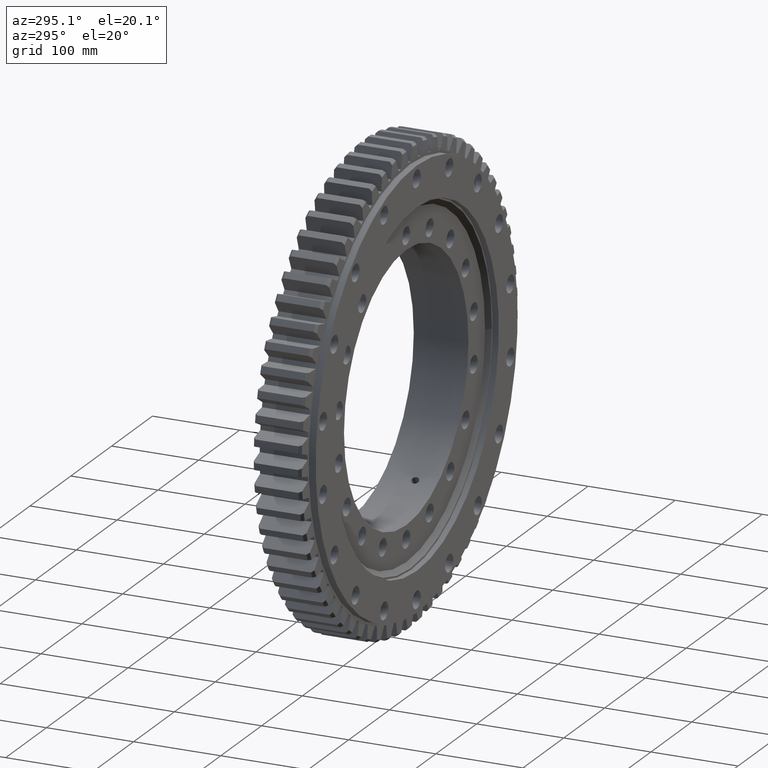
[diagram: clean part render]
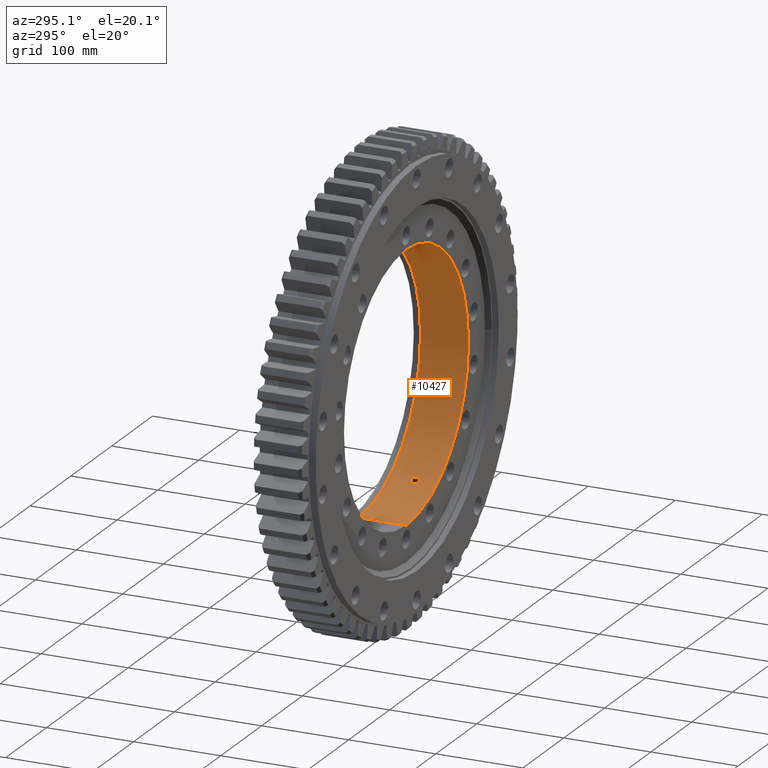
[diagram: same view with one face highlighted and labeled with its STEP entity id]
A machine part, auxiliary view. The second image highlights one B-rep face of the part: STEP entity #10427.
In plain terms, the highlighted cylindrical surface (partial cylindrical patch) has radius 152.5 mm, axis along (-0, 1, -0).
Its self-contained STEP definition (entity closure, byte-faithful):
#267 = CARTESIAN_POINT ( 'NONE',  ( 74.29225030176593200, -3.907519152013132900, 133.1802212328974800 ) ) ;
#273 = CARTESIAN_POINT ( 'NONE',  ( 78.81364263191640900, -3.387316266409083900, 130.5553626666418300 ) ) ;
#314 = CARTESIAN_POINT ( 'NONE',  ( 72.71927240665671400, -1.991495228336234400, -134.0454027066227200 ) ) ;
#336 = CARTESIAN_POINT ( 'NONE',  ( 74.28767655953751600, -3.904536432834662100, -133.1827728660287800 ) ) ;
#358 = CARTESIAN_POINT ( 'NONE',  ( 72.31968173213429900, 2.328878195137326700E-009, -134.2613631472688400 ) ) ;
#387 = CARTESIAN_POINT ( 'NONE',  ( 73.13064253305240900, -2.745461392647999200, -133.8214714272018900 ) ) ;
#462 = B_SPLINE_CURVE_WITH_KNOTS ( 'NONE', 3,
 ( #6783, #6827, #5175, #15782, #7324, #7530, #16392, #1565, #3074, #273, #4847, #7984, #477, #11940, #13487, #13481, #14921, #4697, #1745, #3208, #11996, #10524, #267, #6163, #9163, #17908, #7685, #16441, #6236, #14981, #4754, #13541, #3280, #12050 ),
 .UNSPECIFIED., .F., .F.,
 ( 4, 2, 2, 2, 2, 2, 2, 2, 2, 2, 2, 2, 2, 2, 2, 2, 4 ),
 ( 0.01406981979965470600, 0.01494898441356951600, 0.01582814902748432700, 0.01670731364139913700, 0.01758647825531395000, 0.01846564286922875900, 0.01934480748314357200, 0.02022397209705838200, 0.02110313671097319200, 0.02198230132488800100, 0.02286146593880281100, 0.02374063055271762000, 0.02461979516663243300, 0.02549895978054724300, 0.02637812439446205300, 0.02725728900837686600, 0.02813645362229167500 ),
 .UNSPECIFIED. ) ;
#477 = CARTESIAN_POINT ( 'NONE',  ( 77.97392509725818900, -4.042849930973918800, 131.0587312061424000 ) ) ;
#641 = EDGE_CURVE ( 'NONE', #1531, #15459, #17155, .T. ) ;
#690 = CARTESIAN_POINT ( 'NONE',  ( 79.91641606487417000, -1.455813674671013100, -129.8831362975141100 ) ) ;
#701 = ORIENTED_EDGE ( 'NONE', *, *, #1213, .F. ) ;
#722 = B_SPLINE_CURVE_WITH_KNOTS ( 'NONE', 3,
 ( #11379, #8417, #6978, #15707, #5505, #14264, #4018, #12789, #2546, #11322, #1076, #9829, #18575, #8363, #17125, #6914, #15647, #5436, #14196, #3951, #12731, #2472, #11258, #1016, #9755, #18513, #8299, #17061, #6835, #15586, #5377, #14132, #3888, #12671 ),
 .UNSPECIFIED., .F., .F.,
 ( 4, 2, 2, 2, 2, 2, 2, 2, 2, 2, 2, 2, 2, 2, 2, 2, 4 ),
 ( 6.897535353108955800E-018, 0.0008793637374784256300, 0.001758727474956844300, 0.002638091212435262900, 0.003517454949913681700, 0.004396818687392100100, 0.005276182424870518900, 0.006155546162348937700, 0.007034909899827356500, 0.007914273637305775300, 0.008793637374784193200, 0.009673001112262612900, 0.01055236484974103100, 0.01143172858721945100, 0.01231109232469786800, 0.01319045606217628800, 0.01406981979965470600 ),
 .UNSPECIFIED. ) ;
#790 = CARTESIAN_POINT ( 'NONE',  ( 72.44688673398560800, 1.168614980020480400, -134.1927789151945700 ) ) ;
#1016 = CARTESIAN_POINT ( 'NONE',  ( 78.61398750475098000, 3.578736215521895600, 130.6757454141555600 ) ) ;
#1030 = CARTESIAN_POINT ( 'NONE',  ( 72.31968173213498100, 2.328872791802056300E-009, 134.2613631472684700 ) ) ;
#1055 = CARTESIAN_POINT ( 'NONE',  ( 74.99287484536390000, 4.270932440512649600, -132.7870210118497900 ) ) ;
#1076 = CARTESIAN_POINT ( 'NONE',  ( 73.85858165070760600, 3.576375774547100800, 133.4212143814229400 ) ) ;
#1213 = EDGE_CURVE ( 'NONE', #15459, #10234, #10272, .T. ) ;
#1272 = CARTESIAN_POINT ( 'NONE',  ( 80.11391036619490100, 2.328878195137327100E-009, 129.7613631472685000 ) ) ;
#1360 = ORIENTED_EDGE ( 'NONE', *, *, #8076, .F. ) ;
#1531 = VERTEX_POINT ( 'NONE', #6613 ) ;
#1565 = CARTESIAN_POINT ( 'NONE',  ( 79.32747256124343900, -2.745461392648000900, 130.2437299423034500 ) ) ;
#1717 = CYLINDRICAL_SURFACE ( 'NONE', #10971, 152.5000000000000000 ) ;
#1745 = CARTESIAN_POINT ( 'NONE',  ( 75.74160563177447600, -4.471226233845781600, 132.3614061624894300 ) ) ;
#1768 = CARTESIAN_POINT ( 'NONE',  ( 73.86152143475047200, 3.578736215521888900, -133.4195829789848600 ) ) ;
#1778 = CARTESIAN_POINT ( 'NONE',  ( 0.0000000000000000000, 31.02910628019324300, -1.692367527159823000E-015 ) ) ;
#1799 = CARTESIAN_POINT ( 'NONE',  ( 72.52212737383339900, -1.449934536375629500, -134.1521658688657800 ) ) ;
#1840 = CARTESIAN_POINT ( 'NONE',  ( 72.84159852154947100, -2.252647105919811700, -133.9790230486246700 ) ) ;
#1866 = DIRECTION ( 'NONE',  ( -0.0000000000000000000, 1.000000000000000000, -2.727064569436389400E-017 ) ) ;
#1946 = CARTESIAN_POINT ( 'NONE',  ( 80.11391036619423300, -0.2972754966287049500, -129.7613631472689000 ) ) ;
#2104 = EDGE_CURVE ( 'NONE', #14253, #4080, #462, .T. ) ;
#2128 = CARTESIAN_POINT ( 'NONE',  ( 77.49964222072449600, -4.271301954763126600, -131.3397500155348300 ) ) ;
#2192 = CARTESIAN_POINT ( 'NONE',  ( 76.50558152251309700, 4.499895492040503900, -131.9213104553115300 ) ) ;
#2472 = CARTESIAN_POINT ( 'NONE',  ( 77.96928300471272200, 4.045532425552234000, 131.0614937138474300 ) ) ;
#2485 = VECTOR ( 'NONE', #4945, 1000.000000000000000 ) ;
#2520 = CARTESIAN_POINT ( 'NONE',  ( 75.99718609909891100, 4.500103945228436200, -132.2148397925267600 ) ) ;
#2546 = CARTESIAN_POINT ( 'NONE',  ( 73.29624694366701500, 2.974997841187750200, 133.7308988683331000 ) ) ;
#2585 = EDGE_LOOP ( 'NONE', ( #16240, #10200 ) ) ;
#2718 = CARTESIAN_POINT ( 'NONE',  ( 74.98751093382010400, -4.268822917716241800, -132.7900494178193800 ) ) ;
#2780 = CARTESIAN_POINT ( 'NONE',  ( 76.50372942308531800, -4.500246579133800200, -131.9223917282067500 ) ) ;
#2938 = CARTESIAN_POINT ( 'NONE',  ( 79.60497320494060600, -2.259560185670749000, -130.0743068393758200 ) ) ;
#3069 = CARTESIAN_POINT ( 'NONE',  ( 79.16496670802573000, -2.976696863406552000, -130.3426302476272300 ) ) ;
#3074 = CARTESIAN_POINT ( 'NONE',  ( 79.16834218617384500, -2.972161365393612500, 130.3405791817064300 ) ) ;
#3108 = EDGE_CURVE ( 'NONE', #10234, #17245, #14020, .T. ) ;
#3143 = CARTESIAN_POINT ( 'NONE',  ( 78.61076632590571500, -3.581659222133238600, -130.6776844001974200 ) ) ;
#3208 = CARTESIAN_POINT ( 'NONE',  ( 75.24197497236255600, -4.357368425672514300, 132.6460623887837500 ) ) ;
#3280 = CARTESIAN_POINT ( 'NONE',  ( 72.31968173213499500, -0.2972754966287051700, 134.2613631472685000 ) ) ;
#3301 = CARTESIAN_POINT ( 'NONE',  ( 72.31968173213429900, 2.328878195137326700E-009, -134.2613631472688400 ) ) ;
#3597 = CARTESIAN_POINT ( 'NONE',  ( 80.11391036619424700, 2.328876140039725400E-009, -129.7613631472689000 ) ) ;
#3608 = EDGE_CURVE ( 'NONE', #4080, #14253, #722, .T. ) ;
#3660 = AXIS2_PLACEMENT_3D ( 'NONE', #12781, #8223, #16934 ) ;
#3741 = CARTESIAN_POINT ( 'NONE',  ( 1.867586368699713500E-014, 29.49999999999997200, -152.5000000000000000 ) ) ;
#3888 = CARTESIAN_POINT ( 'NONE',  ( 80.11391036619490100, 0.2937030538668941600, 129.7613631472685300 ) ) ;
#3929 = CARTESIAN_POINT ( 'NONE',  ( 77.50387137879003800, 4.269483257978977900, -131.3372500605864300 ) ) ;
#3951 = CARTESIAN_POINT ( 'NONE',  ( 77.25876475317262800, 4.355930588581140100, 131.4816206058207800 ) ) ;
#4018 = CARTESIAN_POINT ( 'NONE',  ( 72.84253837888411500, 2.254214887922843000, 133.9785105523147000 ) ) ;
#4080 = VERTEX_POINT ( 'NONE', #1030 ) ;
#4542 = EDGE_LOOP ( 'NONE', ( #1360, #8602 ) ) ;
#4634 = CARTESIAN_POINT ( 'NONE',  ( 0.0000000000000000000, 29.49999999999997200, -1.650667811563645600E-015 ) ) ;
#4639 = CARTESIAN_POINT ( 'NONE',  ( 75.98975245830382600, -4.499750269149171100, -132.2191195563515900 ) ) ;
#4657 = CARTESIAN_POINT ( 'NONE',  ( 72.84429951899075200, 2.257562028219687500, -133.9775525877408900 ) ) ;
#4697 = CARTESIAN_POINT ( 'NONE',  ( 75.99627785308588600, -4.500246579133800200, 132.2153690287466100 ) ) ;
#4754 = CARTESIAN_POINT ( 'NONE',  ( 72.44790429841467000, -1.173634041076794900, 134.1922298612379900 ) ) ;
#4778 = CARTESIAN_POINT ( 'NONE',  ( 80.08907344847943900, 0.5897130801298984300, -129.7767066349589400 ) ) ;
#4801 = CARTESIAN_POINT ( 'NONE',  ( 79.72473710999338400, -1.997087964910180300, -130.0008805503838400 ) ) ;
#4847 = CARTESIAN_POINT ( 'NONE',  ( 78.61558488518825500, -3.577393507886714300, 130.6747859767079700 ) ) ;
#4849 = DIRECTION ( 'NONE',  ( -0.0000000000000000000, 1.000000000000000000, -2.727064569436389400E-017 ) ) ;
#4876 = B_SPLINE_CURVE_WITH_KNOTS ( 'NONE', 3,
 ( #15130, #17039, #4778, #13987, #12443, #9112, #10791, #17099, #8341, #11233, #14177, #18557, #10662, #3929, #12709, #9734, #2192, #2520, #12768, #9803, #1055, #8211, #10548, #1768, #11301, #12075, #13436, #4657, #18294, #8087, #790, #9555, #11032, #3301 ),
 .UNSPECIFIED., .F., .F.,
 ( 4, 2, 2, 2, 2, 2, 2, 2, 2, 2, 2, 2, 2, 2, 2, 2, 4 ),
 ( 3.417226916694622600E-018, 0.0008793637374784213000, 0.001758727474956839600, 0.002638091212435258600, 0.003517454949913677400, 0.004396818687392095800, 0.005276182424870514600, 0.006155546162348932500, 0.007034909899827352200, 0.007914273637305771800, 0.008793637374784189800, 0.009673001112262611200, 0.01055236484974103100, 0.01143172858721944900, 0.01231109232469786800, 0.01319045606217628800, 0.01406981979965470800 ),
 .UNSPECIFIED. ) ;
#4945 = DIRECTION ( 'NONE',  ( -0.0000000000000000000, 1.000000000000000000, -2.727064569436389400E-017 ) ) ;
#5064 = ORIENTED_EDGE ( 'NONE', *, *, #3108, .F. ) ;
#5175 = CARTESIAN_POINT ( 'NONE',  ( 80.08968361175948300, -0.5854773802903793200, 129.7763302393175600 ) ) ;
#5377 = CARTESIAN_POINT ( 'NONE',  ( 79.99091217799390600, 1.168614980020484100, 129.8372337943230500 ) ) ;
#5436 = CARTESIAN_POINT ( 'NONE',  ( 76.50281696806774800, 4.500103945228435300, 131.9229136742169700 ) ) ;
#5505 = CARTESIAN_POINT ( 'NONE',  ( 72.52224790989745900, 1.450729198927594300, 134.1521014672491100 ) ) ;
#6071 = FACE_BOUND ( 'NONE', #4542, .T. ) ;
#6163 = CARTESIAN_POINT ( 'NONE',  ( 73.86481123534292700, -3.581659222133224400, 133.4177628492957100 ) ) ;
#6236 = CARTESIAN_POINT ( 'NONE',  ( 72.72169651598136400, -1.997087964910176700, 134.0440879224824200 ) ) ;
#6416 = AXIS2_PLACEMENT_3D ( 'NONE', #4634, #13411, #17718 ) ;
#6598 = ORIENTED_EDGE ( 'NONE', *, *, #13990, .T. ) ;
#6613 = CARTESIAN_POINT ( 'NONE',  ( 0.0000000000000000000, -25.50000000000001100, 152.5000000000000000 ) ) ;
#6783 = CARTESIAN_POINT ( 'NONE',  ( 80.11391036619490100, 2.328878195137327100E-009, 129.7613631472685000 ) ) ;
#6797 = CARTESIAN_POINT ( 'NONE',  ( 80.11391036619424700, 2.328876140039725400E-009, -129.7613631472689000 ) ) ;
#6827 = CARTESIAN_POINT ( 'NONE',  ( 80.11391036619491500, -0.2936365429435590600, 129.7613631472685000 ) ) ;
#6835 = CARTESIAN_POINT ( 'NONE',  ( 79.72592516896268900, 1.994575252088861300, 130.0001523891896200 ) ) ;
#6914 = CARTESIAN_POINT ( 'NONE',  ( 75.74109442347436500, 4.471350611373477300, 132.3617051595541300 ) ) ;
#6978 = CARTESIAN_POINT ( 'NONE',  ( 72.34538804111461700, 0.5897130801299025300, 134.2475254894207800 ) ) ;
#7324 = CARTESIAN_POINT ( 'NONE',  ( 79.91811992822418600, -1.449934536375630900, 129.8820875766638500 ) ) ;
#7530 = CARTESIAN_POINT ( 'NONE',  ( 79.72708780112174100, -1.991495228336235900, 129.9994386021972200 ) ) ;
#7609 = EDGE_CURVE ( 'NONE', #12638, #15047, #13598, .T. ) ;
#7685 = CARTESIAN_POINT ( 'NONE',  ( 73.13402847583850500, -2.750386111445692900, 133.8196208991740000 ) ) ;
#7755 = CARTESIAN_POINT ( 'NONE',  ( 80.08908193046725900, -0.5914518736460990800, -129.7767018686269300 ) ) ;
#7984 = CARTESIAN_POINT ( 'NONE',  ( 78.19582636866437000, -3.904536432834660300, 130.9264015216959400 ) ) ;
#8076 = EDGE_CURVE ( 'NONE', #15047, #12638, #4876, .T. ) ;
#8087 = CARTESIAN_POINT ( 'NONE',  ( 72.52177132638914300, 1.449170517260515400, -134.1523590882490000 ) ) ;
#8211 = CARTESIAN_POINT ( 'NONE',  ( 74.51794151176935100, 4.045532425552234900, -133.0541266538635600 ) ) ;
#8223 = DIRECTION ( 'NONE',  ( -0.0000000000000000000, 1.000000000000000000, -2.727064569436389400E-017 ) ) ;
#8299 = CARTESIAN_POINT ( 'NONE',  ( 79.32756910315878000, 2.744976713661271300, 130.2436691359579300 ) ) ;
#8341 = CARTESIAN_POINT ( 'NONE',  ( 79.16623221906996800, 2.974997841187751100, -130.3418612894400000 ) ) ;
#8363 = CARTESIAN_POINT ( 'NONE',  ( 74.98945932626156700, 4.269483257978976100, 132.7889465359673700 ) ) ;
#8417 = CARTESIAN_POINT ( 'NONE',  ( 72.31968173213499500, 0.2973428317451576300, 134.2613631472684400 ) ) ;
#8602 = ORIENTED_EDGE ( 'NONE', *, *, #7609, .F. ) ;
#8727 = LINE ( 'NONE', #13587, #12187 ) ;
#9026 = ORIENTED_EDGE ( 'NONE', *, *, #641, .F. ) ;
#9073 = CARTESIAN_POINT ( 'NONE',  ( 73.65743935364349700, -3.387316266409080300, -133.5322980173491200 ) ) ;
#9112 = CARTESIAN_POINT ( 'NONE',  ( 79.72542771014292400, 1.995731449381475300, -130.0004574854199600 ) ) ;
#9139 = CARTESIAN_POINT ( 'NONE',  ( 78.80932210103111400, -3.391775692635564000, -130.5579716590619100 ) ) ;
#9163 = CARTESIAN_POINT ( 'NONE',  ( 73.66185907280024000, -3.391775692635555100, 133.5298608240546500 ) ) ;
#9256 = DIRECTION ( 'NONE',  ( 0.0000000000000000000, 2.275047181608927400E-017, 1.000000000000000000 ) ) ;
#9555 = CARTESIAN_POINT ( 'NONE',  ( 72.34560763203289500, 0.5919812696142539000, -134.2474073000338100 ) ) ;
#9734 = CARTESIAN_POINT ( 'NONE',  ( 76.75805194466187200, 4.471350611373476400, -131.7745644609420000 ) ) ;
#9755 = CARTESIAN_POINT ( 'NONE',  ( 78.80867149695785700, 3.392733562319130600, 130.5583680084018600 ) ) ;
#9803 = CARTESIAN_POINT ( 'NONE',  ( 75.23704119880132200, 4.355930588581141900, -132.6488632441640000 ) ) ;
#9829 = CARTESIAN_POINT ( 'NONE',  ( 74.28869496909098300, 3.905331024335234600, 133.1822072585419200 ) ) ;
#9951 = FACE_OUTER_BOUND ( 'NONE', #13226, .T. ) ;
#10200 = ORIENTED_EDGE ( 'NONE', *, *, #2104, .F. ) ;
#10234 = VERTEX_POINT ( 'NONE', #3741 ) ;
#10272 = LINE ( 'NONE', #15171, #2485 ) ;
#10427 = ADVANCED_FACE ( 'NONE', ( #9951, #17724, #6071 ), #1717, .F. ) ;
#10524 = CARTESIAN_POINT ( 'NONE',  ( 74.51800193744952600, -4.045601589200850300, 133.0540937578913700 ) ) ;
#10548 = CARTESIAN_POINT ( 'NONE',  ( 74.28785191883943600, 3.904573635158177200, -133.1826735286047900 ) ) ;
#10571 = CARTESIAN_POINT ( 'NONE',  ( 73.85989184732883900, -3.577393507886715200, -133.4204866322992900 ) ) ;
#10645 = CARTESIAN_POINT ( 'NONE',  ( 72.34475699128729800, -0.5854773802903771000, -134.2478657085010800 ) ) ;
#10662 = CARTESIAN_POINT ( 'NONE',  ( 77.96982067698344600, 4.045098719662561800, -131.0611704349388400 ) ) ;
#10791 = CARTESIAN_POINT ( 'NONE',  ( 79.60752451006334200, 2.254214887922844700, -130.0727439884142600 ) ) ;
#10890 = CARTESIAN_POINT ( 'NONE',  ( 77.25387225448034200, -4.357368425672524900, -131.4844929513712100 ) ) ;
#10971 = AXIS2_PLACEMENT_3D ( 'NONE', #1778, #4849, #9256 ) ;
#11032 = CARTESIAN_POINT ( 'NONE',  ( 72.31968173213429900, 0.2937030538668941600, -134.2613631472688700 ) ) ;
#11233 = CARTESIAN_POINT ( 'NONE',  ( 78.81094237744208900, 3.390104877264850500, -130.5569932624785000 ) ) ;
#11258 = CARTESIAN_POINT ( 'NONE',  ( 78.19565266028070000, 3.904573635158181700, 130.9265037185942300 ) ) ;
#11301 = CARTESIAN_POINT ( 'NONE',  ( 73.66252762343401600, 3.392733562319136800, -133.5294955590694000 ) ) ;
#11322 = CARTESIAN_POINT ( 'NONE',  ( 73.66020161829848700, 3.390104877264850100, 133.5307748262960100 ) ) ;
#11379 = CARTESIAN_POINT ( 'NONE',  ( 72.31968173213498100, 2.328872791802056300E-009, 134.2613631472684700 ) ) ;
#11561 = CARTESIAN_POINT ( 'NONE',  ( 75.23656557763180800, -4.355717322981805100, -132.6491308509772300 ) ) ;
#11940 = CARTESIAN_POINT ( 'NONE',  ( 77.50580069871199400, -4.268822917716242700, 131.3361141441616600 ) ) ;
#11996 = CARTESIAN_POINT ( 'NONE',  ( 74.99373892978792400, -4.271301954763119500, 132.7865339551201500 ) ) ;
#12042 = CARTESIAN_POINT ( 'NONE',  ( 74.51322806364598300, -4.042849930973923200, -133.0567655700820900 ) ) ;
#12050 = CARTESIAN_POINT ( 'NONE',  ( 72.31968173213498100, 2.328872791802056300E-009, 134.2613631472684700 ) ) ;
#12075 = CARTESIAN_POINT ( 'NONE',  ( 73.29424456943860400, 2.972738250776528100, -133.7320001836809500 ) ) ;
#12187 = VECTOR ( 'NONE', #1866, 1000.000000000000000 ) ;
#12379 = CARTESIAN_POINT ( 'NONE',  ( 77.96922430312504600, -4.045601589200859200, -131.0615295960353400 ) ) ;
#12443 = CARTESIAN_POINT ( 'NONE',  ( 79.91800388675608200, 1.450729198927599900, -129.8821597631490200 ) ) ;
#12638 = VERTEX_POINT ( 'NONE', #13801 ) ;
#12671 = CARTESIAN_POINT ( 'NONE',  ( 80.11391036619490100, 2.328878195137327100E-009, 129.7613631472685000 ) ) ;
#12709 = CARTESIAN_POINT ( 'NONE',  ( 77.25949384583893200, 4.355833461252584200, -131.4811963282019500 ) ) ;
#12731 = CARTESIAN_POINT ( 'NONE',  ( 77.50049606643737800, 4.270932440512647000, 131.3392452248373600 ) ) ;
#12768 = CARTESIAN_POINT ( 'NONE',  ( 75.73856063403599100, 4.470840898411060100, -132.3631509197462000 ) ) ;
#12781 = CARTESIAN_POINT ( 'NONE',  ( 0.0000000000000000000, -25.50000000000001400, -1.507822983736319100E-016 ) ) ;
#12789 = CARTESIAN_POINT ( 'NONE',  ( 73.12941428274641000, 2.743401880858387500, 133.8221411200640600 ) ) ;
#12970 = CARTESIAN_POINT ( 'NONE',  ( 72.31968173213429900, -0.2936365429435580700, -134.2613631472688400 ) ) ;
#13032 = CARTESIAN_POINT ( 'NONE',  ( 76.75753740145813700, -4.471226233845785100, -131.7748576817842800 ) ) ;
#13226 = EDGE_LOOP ( 'NONE', ( #701, #9026, #6598, #5064 ) ) ;
#13411 = DIRECTION ( 'NONE',  ( 0.0000000000000000000, -1.000000000000000000, 0.0000000000000000000 ) ) ;
#13436 = CARTESIAN_POINT ( 'NONE',  ( 73.13054160225479400, 2.744976713661278400, -133.8215246317803600 ) ) ;
#13481 = CARTESIAN_POINT ( 'NONE',  ( 76.76275972249131000, -4.470440428078162200, 131.7718157848029000 ) ) ;
#13487 = CARTESIAN_POINT ( 'NONE',  ( 77.25923431805587400, -4.355717322981806000, 131.4813425092119700 ) ) ;
#13541 = CARTESIAN_POINT ( 'NONE',  ( 72.34537967235611700, -0.5914518736460961900, 134.2475304518717400 ) ) ;
#13572 = CARTESIAN_POINT ( 'NONE',  ( 0.0000000000000000000, 29.49999999999997200, 152.5000000000000000 ) ) ;
#13587 = CARTESIAN_POINT ( 'NONE',  ( 0.0000000000000000000, 31.02910628019324700, 152.5000000000000000 ) ) ;
#13598 = B_SPLINE_CURVE_WITH_KNOTS ( 'NONE', 3,
 ( #358, #12970, #10645, #16444, #1799, #314, #1840, #387, #17827, #9073, #10571, #336, #12042, #2718, #11561, #14855, #4639, #2780, #13032, #10890, #2128, #12379, #15271, #3143, #9139, #3069, #17927, #2938, #4801, #690, #14100, #7755, #1946, #6797 ),
 .UNSPECIFIED., .F., .F.,
 ( 4, 2, 2, 2, 2, 2, 2, 2, 2, 2, 2, 2, 2, 2, 2, 2, 4 ),
 ( 0.01406981979965470800, 0.01494898441356951700, 0.01582814902748432700, 0.01670731364139913700, 0.01758647825531394600, 0.01846564286922875600, 0.01934480748314356500, 0.02022397209705837500, 0.02110313671097318500, 0.02198230132488799400, 0.02286146593880280400, 0.02374063055271761300, 0.02461979516663242600, 0.02549895978054723600, 0.02637812439446204600, 0.02725728900837685500, 0.02813645362229166500 ),
 .UNSPECIFIED. ) ;
#13801 = CARTESIAN_POINT ( 'NONE',  ( 72.31968173213429900, 2.328878195137326700E-009, -134.2613631472688400 ) ) ;
#13987 = CARTESIAN_POINT ( 'NONE',  ( 79.99171182737694600, 1.164916109338948200, -129.8367409856625200 ) ) ;
#13990 = EDGE_CURVE ( 'NONE', #1531, #17245, #8727, .T. ) ;
#14020 = CIRCLE ( 'NONE', #6416, 152.5000000000000000 ) ;
#14100 = CARTESIAN_POINT ( 'NONE',  ( 79.98992790110484900, -1.173634041076797600, -129.8378405039902900 ) ) ;
#14132 = CARTESIAN_POINT ( 'NONE',  ( 80.08886129800875200, 0.5919812696142586800, 129.7768377115790800 ) ) ;
#14177 = CARTESIAN_POINT ( 'NONE',  ( 78.61687023272757800, 3.576375774547095900, -130.6740151877118600 ) ) ;
#14196 = CARTESIAN_POINT ( 'NONE',  ( 76.76057090443522700, 4.470840898411060100, 131.7730930150166300 ) ) ;
#14253 = VERTEX_POINT ( 'NONE', #1272 ) ;
#14264 = CARTESIAN_POINT ( 'NONE',  ( 72.72098483090050500, 1.995731449381470600, 134.0444744672739700 ) ) ;
#14855 = CARTESIAN_POINT ( 'NONE',  ( 75.73636011119631900, -4.470440428078161300, -132.3644078766801600 ) ) ;
#14921 = CARTESIAN_POINT ( 'NONE',  ( 76.51024017265977800, -4.499750269149171100, 131.9186158343582600 ) ) ;
#14981 = CARTESIAN_POINT ( 'NONE',  ( 72.52388752440620600, -1.455813674671010900, 134.1512146403452400 ) ) ;
#15047 = VERTEX_POINT ( 'NONE', #3597 ) ;
#15130 = CARTESIAN_POINT ( 'NONE',  ( 80.11391036619424700, 2.328876140039725400E-009, -129.7613631472689000 ) ) ;
#15171 = CARTESIAN_POINT ( 'NONE',  ( 1.867586368699713500E-014, 31.02910628019324000, -152.5000000000000000 ) ) ;
#15271 = CARTESIAN_POINT ( 'NONE',  ( 78.19132971843733100, -3.907519152013145800, -130.9290866820904900 ) ) ;
#15459 = VERTEX_POINT ( 'NONE', #17010 ) ;
#15586 = CARTESIAN_POINT ( 'NONE',  ( 79.91846528484063600, 1.449170517260515400, 129.8818758402237000 ) ) ;
#15647 = CARTESIAN_POINT ( 'NONE',  ( 75.99441539357633200, 4.499895492040502100, 132.2164323574538400 ) ) ;
#15707 = CARTESIAN_POINT ( 'NONE',  ( 72.44606012447482600, 1.164916109338952000, 134.1932250275441400 ) ) ;
#15782 = CARTESIAN_POINT ( 'NONE',  ( 79.99172027170716600, -1.165493158689383700, 129.8367359393676600 ) ) ;
#16240 = ORIENTED_EDGE ( 'NONE', *, *, #3608, .F. ) ;
#16392 = CARTESIAN_POINT ( 'NONE',  ( 79.60843827355446900, -2.252647105919812500, 130.0721862962416000 ) ) ;
#16441 = CARTESIAN_POINT ( 'NONE',  ( 72.84516750008049300, -2.259560185670744600, 133.9770824827463700 ) ) ;
#16444 = CARTESIAN_POINT ( 'NONE',  ( 72.44605153209023700, -1.165493158689380200, -134.1932298174013200 ) ) ;
#16934 = DIRECTION ( 'NONE',  ( 0.0000000000000000000, 2.275047181608927400E-017, 1.000000000000000000 ) ) ;
#17010 = CARTESIAN_POINT ( 'NONE',  ( 1.867586368699713500E-014, -25.50000000000001800, -152.5000000000000000 ) ) ;
#17039 = CARTESIAN_POINT ( 'NONE',  ( 80.11391036619424700, 0.2973428317451583000, -129.7613631472689000 ) ) ;
#17061 = CARTESIAN_POINT ( 'NONE',  ( 79.60581431835322500, 2.257562028219680000, 130.0737901981993300 ) ) ;
#17099 = CARTESIAN_POINT ( 'NONE',  ( 79.32866665742781700, 2.743401880858389300, -130.2430010927673400 ) ) ;
#17125 = CARTESIAN_POINT ( 'NONE',  ( 75.23630921727203700, 4.355833461252582400, 132.6492825181252600 ) ) ;
#17155 = CIRCLE ( 'NONE', #3660, 152.5000000000000000 ) ;
#17245 = VERTEX_POINT ( 'NONE', #13572 ) ;
#17718 = DIRECTION ( 'NONE',  ( 0.0000000000000000000, 0.0000000000000000000, 1.000000000000000000 ) ) ;
#17724 = FACE_BOUND ( 'NONE', #2585, .T. ) ;
#17827 = CARTESIAN_POINT ( 'NONE',  ( 73.29408162224737600, -2.972161365393606800, -133.7320850995793900 ) ) ;
#17908 = CARTESIAN_POINT ( 'NONE',  ( 73.29754563651366100, -2.976696863406542700, 133.7301873827135800 ) ) ;
#17927 = CARTESIAN_POINT ( 'NONE',  ( 79.32417698556781700, -2.750386111445699100, -130.2457369907580200 ) ) ;
#18294 = CARTESIAN_POINT ( 'NONE',  ( 72.72047188040453100, 1.994575252088863800, -134.0447527311340300 ) ) ;
#18513 = CARTESIAN_POINT ( 'NONE',  ( 79.16818717325301700, 2.972738250776521400, 130.3406778401642900 ) ) ;
#18557 = CARTESIAN_POINT ( 'NONE',  ( 78.19482733343548400, 3.905331024335231900, -130.9270006864972800 ) ) ;
#18575 = CARTESIAN_POINT ( 'NONE',  ( 74.51739270788672800, 4.045098719662561800, 133.0544306522546400 ) ) ;